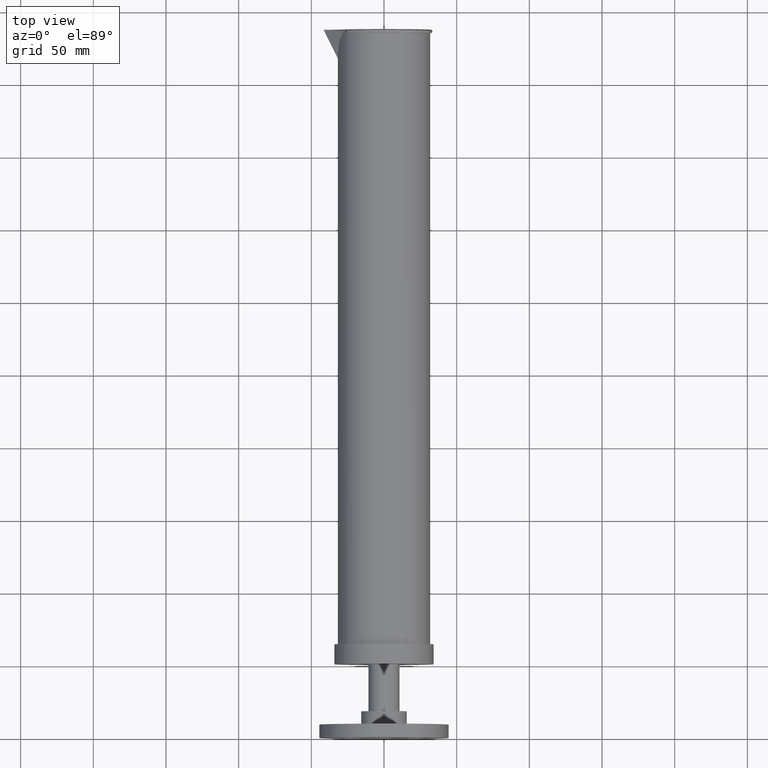
[diagram: clean part render]
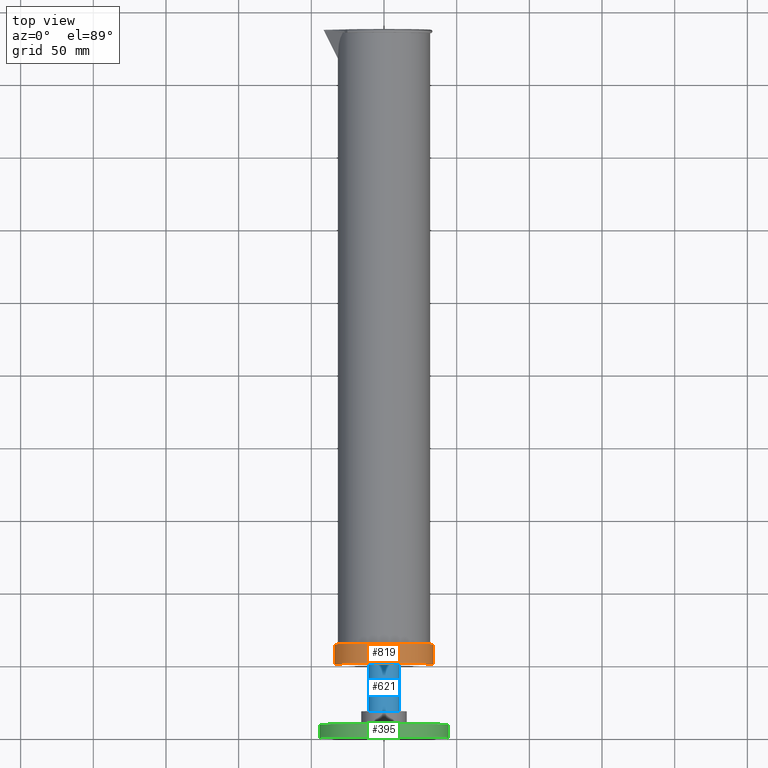
[diagram: same view with three faces highlighted in distinct colors, each labeled with its STEP entity id]
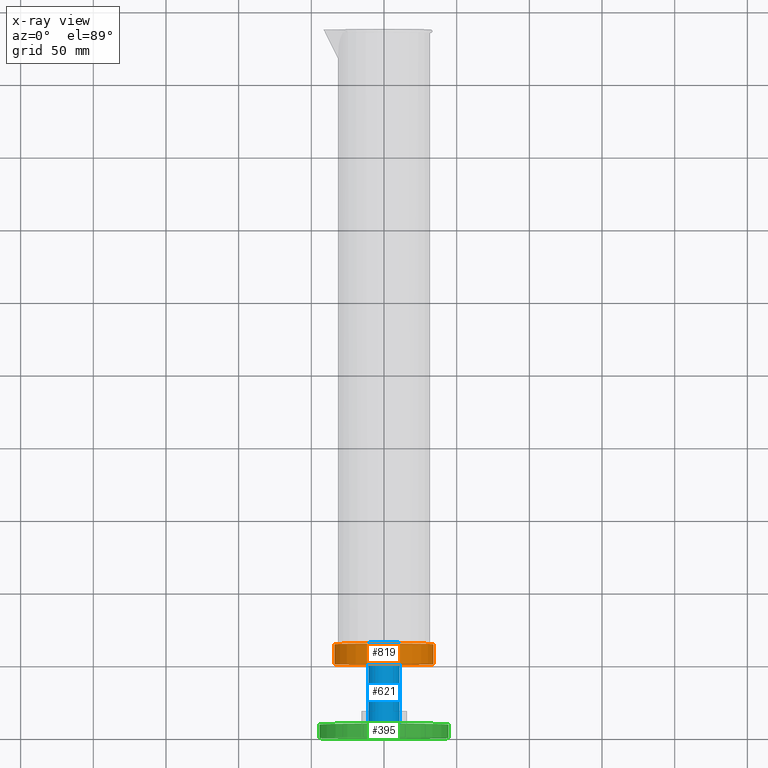
[diagram: x-ray of the same camera — body ghosted, the three highlighted faces saturated]
A machine part, top view with three faces highlighted in distinct colors.
The next image is the same camera in x-ray (body ghosted, the three faces saturated) — at least one of them is partly hidden behind the body in this view.
Their STEP definitions:

[orange] entity #819 — the highlighted cylindrical surface (bore or boss wall) has radius 34.163 mm, axis along (-0, -1, 0).
#785=CARTESIAN_POINT('',(1.345000000000000,0.540000000000000,0.0));
#786=VERTEX_POINT('',#785);
#787=CARTESIAN_POINT('',(0.0,0.540000000000000,0.0));
#788=DIRECTION('',(0.0,-1.0,0.0));
#789=DIRECTION('',(1.0,0.0,0.0));
#790=AXIS2_PLACEMENT_3D('',#787,#788,#789);
#791=CIRCLE('',#790,1.345000000000000);
#792=EDGE_CURVE('',#786,#786,#791,.T.);
#800=CARTESIAN_POINT('',(0.0,0.270000000000000,0.0));
#801=DIRECTION('',(0.0,-1.0,0.0));
#802=DIRECTION('',(1.0,0.0,0.0));
#803=AXIS2_PLACEMENT_3D('',#800,#801,#802);
#804=CYLINDRICAL_SURFACE('',#803,1.345000000000000);
#805=CARTESIAN_POINT('',(1.345000000000000,0.0,0.0));
#806=VERTEX_POINT('',#805);
#807=CARTESIAN_POINT('',(0.0,0.0,0.0));
#808=DIRECTION('',(0.0,-1.0,0.0));
#809=DIRECTION('',(1.0,0.0,0.0));
#810=AXIS2_PLACEMENT_3D('',#807,#808,#809);
#811=CIRCLE('',#810,1.345000000000000);
#812=EDGE_CURVE('',#806,#806,#811,.T.);
#813=ORIENTED_EDGE('',*,*,#812,.F.);
#814=EDGE_LOOP('',(#813));
#815=FACE_OUTER_BOUND('',#814,.T.);
#816=ORIENTED_EDGE('',*,*,#792,.T.);
#817=EDGE_LOOP('',(#816));
#818=FACE_BOUND('',#817,.T.);
#819=ADVANCED_FACE('',(#815,#818),#804,.T.);

[blue] entity #621 — the highlighted cylindrical surface (bore or boss wall) has radius 10.668 mm, axis along (0, 1, 0).
#587=CARTESIAN_POINT('',(-0.420000000000000,-2.107494E-018,0.0));
#588=VERTEX_POINT('',#587);
#589=CARTESIAN_POINT('',(0.0,0.0,0.0));
#590=DIRECTION('',(0.0,1.0,0.0));
#591=DIRECTION('',(-1.0,0.0,0.0));
#592=AXIS2_PLACEMENT_3D('',#589,#590,#591);
#593=CIRCLE('',#592,0.420000000000000);
#594=EDGE_CURVE('',#588,#588,#593,.T.);
#602=CARTESIAN_POINT('',(0.0,1.241000000000000,0.0));
#603=DIRECTION('',(0.0,1.0,0.0));
#604=DIRECTION('',(-1.0,0.0,0.0));
#605=AXIS2_PLACEMENT_3D('',#602,#603,#604);
#606=CYLINDRICAL_SURFACE('',#605,0.420000000000000);
#607=CARTESIAN_POINT('',(-0.420000000000000,2.482000000000000,0.0));
#608=VERTEX_POINT('',#607);
#609=CARTESIAN_POINT('',(0.0,2.482000000000000,0.0));
#610=DIRECTION('',(0.0,1.0,0.0));
#611=DIRECTION('',(-1.0,0.0,0.0));
#612=AXIS2_PLACEMENT_3D('',#609,#610,#611);
#613=CIRCLE('',#612,0.420000000000000);
#614=EDGE_CURVE('',#608,#608,#613,.T.);
#615=ORIENTED_EDGE('',*,*,#614,.F.);
#616=EDGE_LOOP('',(#615));
#617=FACE_OUTER_BOUND('',#616,.T.);
#618=ORIENTED_EDGE('',*,*,#594,.T.);
#619=EDGE_LOOP('',(#618));
#620=FACE_BOUND('',#619,.T.);
#621=ADVANCED_FACE('',(#617,#620),#606,.T.);

[green] entity #395 — the highlighted cylindrical surface (bore or boss wall) has radius 44.45 mm, axis along (0, 1, 0).
#349=CARTESIAN_POINT('',(-1.750000000000000,-2.143132E-016,0.0));
#350=VERTEX_POINT('',#349);
#351=CARTESIAN_POINT('',(0.0,-1.748383E-016,0.0));
#352=DIRECTION('',(0.0,1.0,0.0));
#353=DIRECTION('',(-1.0,0.0,0.0));
#354=AXIS2_PLACEMENT_3D('',#351,#352,#353);
#355=CIRCLE('',#354,1.750000000000000);
#356=EDGE_CURVE('',#350,#350,#355,.T.);
#376=CARTESIAN_POINT('',(0.0,0.182500000000000,0.0));
#377=DIRECTION('',(0.0,1.0,0.0));
#378=DIRECTION('',(-1.0,0.0,0.0));
#379=AXIS2_PLACEMENT_3D('',#376,#377,#378);
#380=CYLINDRICAL_SURFACE('',#379,1.750000000000000);
#381=CARTESIAN_POINT('',(-1.750000000000000,0.365000000000000,0.0));
#382=VERTEX_POINT('',#381);
#383=CARTESIAN_POINT('',(0.0,0.365000000000000,0.0));
#384=DIRECTION('',(0.0,1.0,0.0));
#385=DIRECTION('',(-1.0,0.0,0.0));
#386=AXIS2_PLACEMENT_3D('',#383,#384,#385);
#387=CIRCLE('',#386,1.750000000000000);
#388=EDGE_CURVE('',#382,#382,#387,.T.);
#389=ORIENTED_EDGE('',*,*,#388,.F.);
#390=EDGE_LOOP('',(#389));
#391=FACE_OUTER_BOUND('',#390,.T.);
#392=ORIENTED_EDGE('',*,*,#356,.T.);
#393=EDGE_LOOP('',(#392));
#394=FACE_BOUND('',#393,.T.);
#395=ADVANCED_FACE('',(#391,#394),#380,.T.);